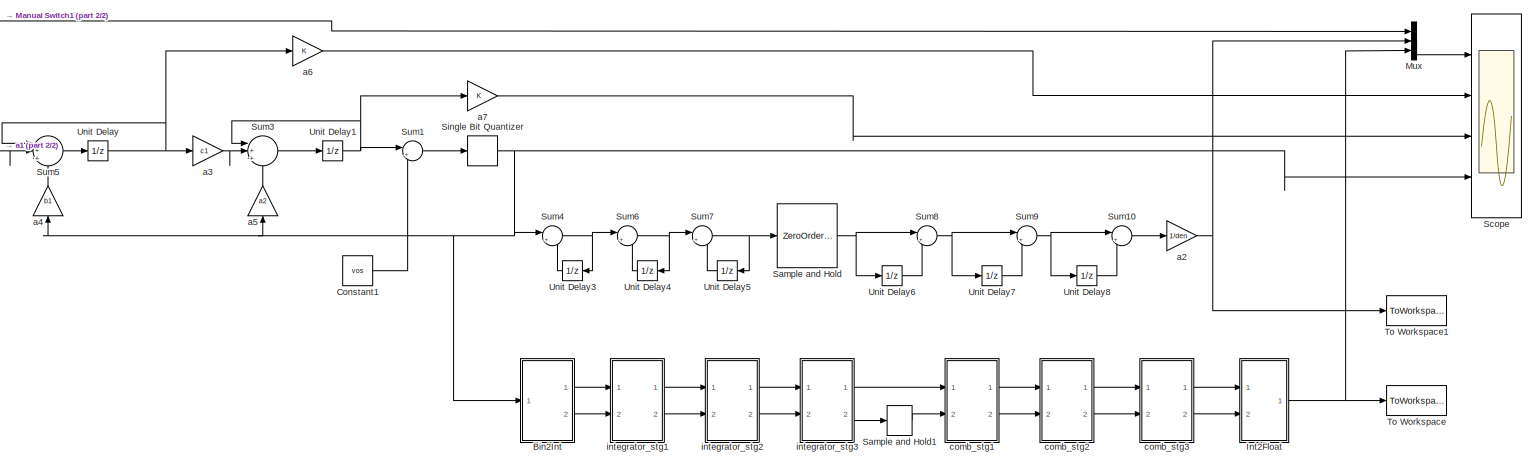
[diagram: root canvas - part 1/2, most of the canvas]
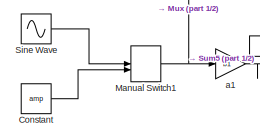
[diagram: root canvas - part 2/2, middle left region]
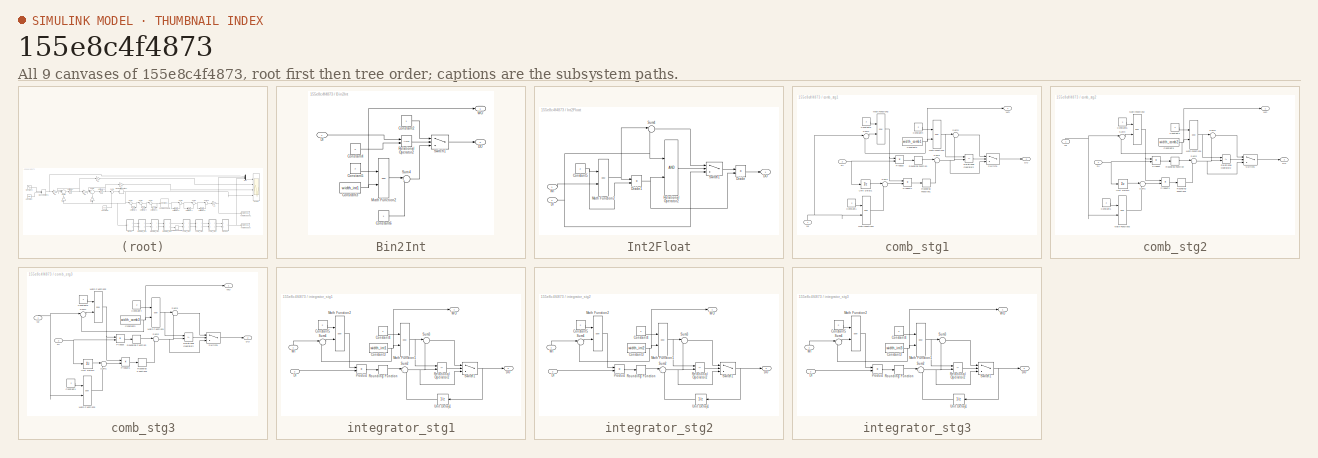
[diagram: thumbnail index - all 9 canvases of the model, root first then tree order]
MODEL slx_155e8c4f4873
KIND model
BLOCK [SubSystem] Bin2Int
  FunctionWithSeparateData = off
  MaskHideContents = off
  MinAlgLoopOccurrences = off
  Opaque = off
  Ports = [1, 2]
  PropExecContextOutsideSubsystem = off
  RTWSystemCode = Auto
  RequestExecContextInheritance = off
BLOCK [Constant] Bin2Int/Constant2
BLOCK [Constant] Bin2Int/Constant3
  Value = width_int1
BLOCK [Constant] Bin2Int/Constant4
  Value = 0
BLOCK [Constant] Bin2Int/Constant5
  Value = 2
BLOCK [Constant] Bin2Int/Constant6
BLOCK [Inport] Bin2Int/DI
  IconDisplay = Port number
BLOCK [Outport] Bin2Int/DO
  IconDisplay = Port number
  Port = 2
BLOCK [Math] Bin2Int/Math Function2
  Operator = pow
  Ports = [2, 1]
  SampleTime = 1/fs
BLOCK [RelationalOperator] Bin2Int/Relational Operator2
  InputSameDT = off
  OutDataTypeStr = boolean
  Ports = [2, 1]
  SampleTime = 1/fs
BLOCK [Sum] Bin2Int/Sum4
  IconShape = round
  InputSameDT = off
  Inputs = |+-
  OutDataTypeStr = Inherit: Inherit via internal rule
  Ports = [2, 1]
  SampleTime = 1/fs
  SaturateOnIntegerOverflow = off
BLOCK [Switch] Bin2Int/Switch1
  Criteria = u2 > Threshold
  InputSameDT = off
  SampleTime = 1/fs
  SaturateOnIntegerOverflow = off
BLOCK [Outport] Bin2Int/WO
  IconDisplay = Port number
BLOCK [Constant] Constant
  SampleTime = 1/fs
  Value = amp
BLOCK [Constant] Constant1
  SampleTime = 1/fs
  Value = vos
BLOCK [SubSystem] Int2Float
  FunctionWithSeparateData = off
  MaskHideContents = off
  MinAlgLoopOccurrences = off
  Opaque = off
  Ports = [2, 1]
  PropExecContextOutsideSubsystem = off
  RTWSystemCode = Auto
  RequestExecContextInheritance = off
BLOCK [Constant] Int2Float/Constant5
  Value = 2
BLOCK [Inport] Int2Float/DI
  IconDisplay = Port number
  Port = 2
BLOCK [Outport] Int2Float/DO
  IconDisplay = Port number
BLOCK [Product] Int2Float/Divide
  InputSameDT = off
  Inputs = */
  OutDataTypeStr = Inherit: Inherit via internal rule
  Ports = [2, 1]
  RndMeth = Floor
  SampleTime = 1/fs
  SaturateOnIntegerOverflow = off
BLOCK [Product] Int2Float/Divide1
  InputSameDT = off
  Inputs = */
  OutDataTypeStr = Inherit: Inherit via internal rule
  Ports = [2, 1]
  RndMeth = Floor
  SampleTime = 1/fs
  SaturateOnIntegerOverflow = off
BLOCK [Math] Int2Float/Math Function2
  Operator = pow
  Ports = [2, 1]
  SampleTime = 1/fs
BLOCK [RelationalOperator] Int2Float/Relational Operator2
  InputSameDT = off
  OutDataTypeStr = boolean
  Ports = [2, 1]
  SampleTime = 1/fs
BLOCK [Sum] Int2Float/Sum4
  IconShape = round
  InputSameDT = off
  Inputs = |-+
  OutDataTypeStr = Inherit: Inherit via internal rule
  Ports = [2, 1]
  SampleTime = 1/fs
  SaturateOnIntegerOverflow = off
BLOCK [Switch] Int2Float/Switch1
  Criteria = u2 > Threshold
  InputSameDT = off
  SampleTime = 1/fs
  SaturateOnIntegerOverflow = off
BLOCK [Inport] Int2Float/WI
  IconDisplay = Port number
BLOCK [ManualSwitch] Manual Switch1
  CurrentSetting = 0
BLOCK [Mux] Mux
  DisplayOption = bar
  Inputs = 3
  Ports = [3, 1]
BLOCK [ZeroOrderHold] Sample and Hold
  SampleTime = osr/fs
BLOCK [ZeroOrderHold] Sample and Hold1
  SampleTime = osr/fs
BLOCK [Scope] Scope
  DataFormat = StructureWithTime
  Floating = off
  MaxDataPoints = 20000
  NumInputPorts = 4
  Ports = [4]
  SampleTime = 0
  ShowLegends = off
  TimeRange = 0.09
  YMax = 0.01001~0.6~0.2~1.5
  YMin = 0.00999~-0.2~-0.2~-1.5
BLOCK [Sin] Sine Wave
  Amplitude = amp
  Frequency = 2*pi*fin
  Ports = [0, 1]
  SampleTime = 1/fs
BLOCK [Signum] Single Bit Quantizer
  SampleTime = 1/fs
BLOCK [Sum] Sum1
  AccumDataTypeStr = double
  IconShape = round
  InputSameDT = off
  Inputs = |++
  OutDataTypeStr = Inherit: Inherit via internal rule
  Ports = [2, 1]
  SampleTime = 1/fs
  SaturateOnIntegerOverflow = off
BLOCK [Sum] Sum10
  AccumDataTypeStr = double
  IconShape = round
  InputSameDT = off
  Inputs = |+-
  OutDataTypeStr = Inherit: Inherit via internal rule
  Ports = [2, 1]
  SampleTime = osr/fs
  SaturateOnIntegerOverflow = off
BLOCK [Sum] Sum3
  AccumDataTypeStr = double
  IconShape = round
  InputSameDT = off
  Inputs = |++-
  OutDataTypeStr = Inherit: Inherit via internal rule
  Ports = [3, 1]
  SampleTime = 1/fs
  SaturateOnIntegerOverflow = off
BLOCK [Sum] Sum4
  AccumDataTypeStr = double
  IconShape = round
  InputSameDT = off
  Inputs = |++
  OutDataTypeStr = Inherit: Inherit via internal rule
  Ports = [2, 1]
  SampleTime = 1/fs
  SaturateOnIntegerOverflow = off
BLOCK [Sum] Sum5
  AccumDataTypeStr = double
  IconShape = round
  InputSameDT = off
  Inputs = |++-
  OutDataTypeStr = Inherit: Inherit via internal rule
  Ports = [3, 1]
  SampleTime = 1/fs
  SaturateOnIntegerOverflow = off
BLOCK [Sum] Sum6
  AccumDataTypeStr = double
  IconShape = round
  InputSameDT = off
  Inputs = |++
  OutDataTypeStr = Inherit: Inherit via internal rule
  Ports = [2, 1]
  SampleTime = 1/fs
  SaturateOnIntegerOverflow = off
BLOCK [Sum] Sum7
  AccumDataTypeStr = double
  IconShape = round
  InputSameDT = off
  Inputs = |++
  OutDataTypeStr = Inherit: Inherit via internal rule
  Ports = [2, 1]
  SampleTime = 1/fs
  SaturateOnIntegerOverflow = off
BLOCK [Sum] Sum8
  AccumDataTypeStr = double
  IconShape = round
  InputSameDT = off
  Inputs = |+-
  OutDataTypeStr = Inherit: Inherit via internal rule
  Ports = [2, 1]
  SampleTime = osr/fs
  SaturateOnIntegerOverflow = off
BLOCK [Sum] Sum9
  AccumDataTypeStr = double
  IconShape = round
  InputSameDT = off
  Inputs = |+-
  OutDataTypeStr = Inherit: Inherit via internal rule
  Ports = [2, 1]
  SampleTime = osr/fs
  SaturateOnIntegerOverflow = off
BLOCK [ToWorkspace] To Workspace
  MaxDataPoints = inf
  Ports = [1]
  SampleTime = osr/fs
  SaveFormat = Timeseries
  VariableName = dout_real
BLOCK [ToWorkspace] To Workspace1
  MaxDataPoints = inf
  Ports = [1]
  SampleTime = osr/fs
  SaveFormat = Timeseries
  VariableName = dout_ideal
BLOCK [UnitDelay] Unit Delay
  SampleTime = 1/fs
BLOCK [UnitDelay] Unit Delay1
  SampleTime = 1/fs
BLOCK [UnitDelay] Unit Delay3
  SampleTime = 1/fs
BLOCK [UnitDelay] Unit Delay4
  SampleTime = 1/fs
BLOCK [UnitDelay] Unit Delay5
  SampleTime = 1/fs
BLOCK [UnitDelay] Unit Delay6
  SampleTime = osr/fs
BLOCK [UnitDelay] Unit Delay7
  SampleTime = osr/fs
BLOCK [UnitDelay] Unit Delay8
  SampleTime = osr/fs
BLOCK [Gain] a1
  Gain = b1
  OutDataTypeStr = Inherit: Inherit via internal rule
  ParamDataTypeStr = Inherit: Inherit via internal rule
  SampleTime = 1/fs
  SaturateOnIntegerOverflow = off
BLOCK [Gain] a2
  Gain = 1/den
  OutDataTypeStr = Inherit: Inherit via internal rule
  ParamDataTypeStr = Inherit: Inherit via internal rule
  SampleTime = osr/fs
  SaturateOnIntegerOverflow = off
BLOCK [Gain] a3
  Gain = c1
  OutDataTypeStr = Inherit: Inherit via internal rule
  ParamDataTypeStr = Inherit: Inherit via internal rule
  SampleTime = 1/fs
  SaturateOnIntegerOverflow = off
BLOCK [Gain] a4
  Gain = b1
  OutDataTypeStr = Inherit: Inherit via internal rule
  ParamDataTypeStr = Inherit: Inherit via internal rule
  SampleTime = 1/fs
  SaturateOnIntegerOverflow = off
BLOCK [Gain] a5
  Gain = a2
  OutDataTypeStr = Inherit: Inherit via internal rule
  ParamDataTypeStr = Inherit: Inherit via internal rule
  SampleTime = 1/fs
  SaturateOnIntegerOverflow = off
BLOCK [Gain] a6
  OutDataTypeStr = Inherit: Inherit via internal rule
  ParamDataTypeStr = Inherit: Inherit via internal rule
  SampleTime = 1/fs
  SaturateOnIntegerOverflow = off
BLOCK [Gain] a7
  OutDataTypeStr = Inherit: Inherit via internal rule
  ParamDataTypeStr = Inherit: Inherit via internal rule
  SampleTime = 1/fs
  SaturateOnIntegerOverflow = off
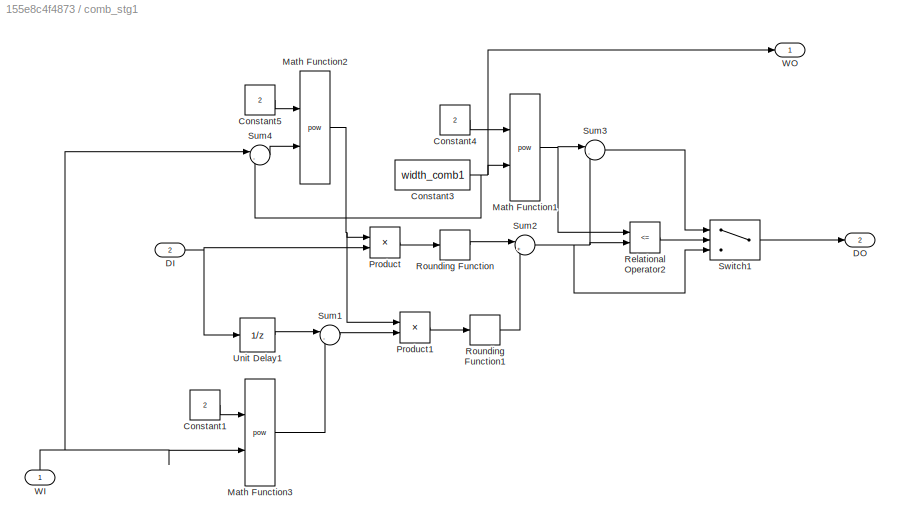
BLOCK [SubSystem] comb_stg1
  FunctionWithSeparateData = off
  MaskHideContents = off
  MinAlgLoopOccurrences = off
  Opaque = off
  Ports = [2, 2]
  PropExecContextOutsideSubsystem = off
  RTWSystemCode = Auto
  RequestExecContextInheritance = off
BLOCK [Constant] comb_stg1/Constant1
  Value = 2
BLOCK [Constant] comb_stg1/Constant3
  Value = width_comb1
BLOCK [Constant] comb_stg1/Constant4
  Value = 2
BLOCK [Constant] comb_stg1/Constant5
  Value = 2
BLOCK [Inport] comb_stg1/DI
  IconDisplay = Port number
  Port = 2
BLOCK [Outport] comb_stg1/DO
  IconDisplay = Port number
  Port = 2
BLOCK [Math] comb_stg1/Math Function1
  Operator = pow
  Ports = [2, 1]
  SampleTime = 1/fs
BLOCK [Math] comb_stg1/Math Function2
  Operator = pow
  Ports = [2, 1]
  SampleTime = 1/fs
BLOCK [Math] comb_stg1/Math Function3
  Operator = pow
  Ports = [2, 1]
  SampleTime = 1/fs
BLOCK [Product] comb_stg1/Product
  InputSameDT = off
  OutDataTypeStr = Inherit: Inherit via internal rule
  Ports = [2, 1]
  RndMeth = Floor
  SampleTime = 1/fs
  SaturateOnIntegerOverflow = off
BLOCK [Product] comb_stg1/Product1
  InputSameDT = off
  OutDataTypeStr = Inherit: Inherit via internal rule
  Ports = [2, 1]
  RndMeth = Floor
  SampleTime = 1/fs
  SaturateOnIntegerOverflow = off
BLOCK [RelationalOperator] comb_stg1/Relational Operator2
  InputSameDT = off
  Operator = <=
  OutDataTypeStr = boolean
  Ports = [2, 1]
  SampleTime = 1/fs
BLOCK [Rounding] comb_stg1/Rounding Function
  SampleTime = 1/fs
BLOCK [Rounding] comb_stg1/Rounding Function1
  SampleTime = 1/fs
BLOCK [Sum] comb_stg1/Sum1
  IconShape = round
  InputSameDT = off
  Inputs = |-+
  OutDataTypeStr = Inherit: Inherit via internal rule
  Ports = [2, 1]
  SampleTime = 1/fs
  SaturateOnIntegerOverflow = off
BLOCK [Sum] comb_stg1/Sum2
  IconShape = round
  InputSameDT = off
  Inputs = |++
  OutDataTypeStr = Inherit: Inherit via internal rule
  Ports = [2, 1]
  SampleTime = 1/fs
  SaturateOnIntegerOverflow = off
BLOCK [Sum] comb_stg1/Sum3
  IconShape = round
  InputSameDT = off
  Inputs = |-+
  OutDataTypeStr = Inherit: Inherit via internal rule
  Ports = [2, 1]
  SampleTime = 1/fs
  SaturateOnIntegerOverflow = off
BLOCK [Sum] comb_stg1/Sum4
  IconShape = round
  InputSameDT = off
  Inputs = |-+
  OutDataTypeStr = Inherit: Inherit via internal rule
  Ports = [2, 1]
  SampleTime = 1/fs
  SaturateOnIntegerOverflow = off
BLOCK [Switch] comb_stg1/Switch1
  Criteria = u2 > Threshold
  InputSameDT = off
  SampleTime = 1/fs
  SaturateOnIntegerOverflow = off
BLOCK [UnitDelay] comb_stg1/Unit Delay1
  InputProcessing = Elements as channels (sample based)
  SampleTime = osr/fs
BLOCK [Inport] comb_stg1/WI
  IconDisplay = Port number
BLOCK [Outport] comb_stg1/WO
  IconDisplay = Port number
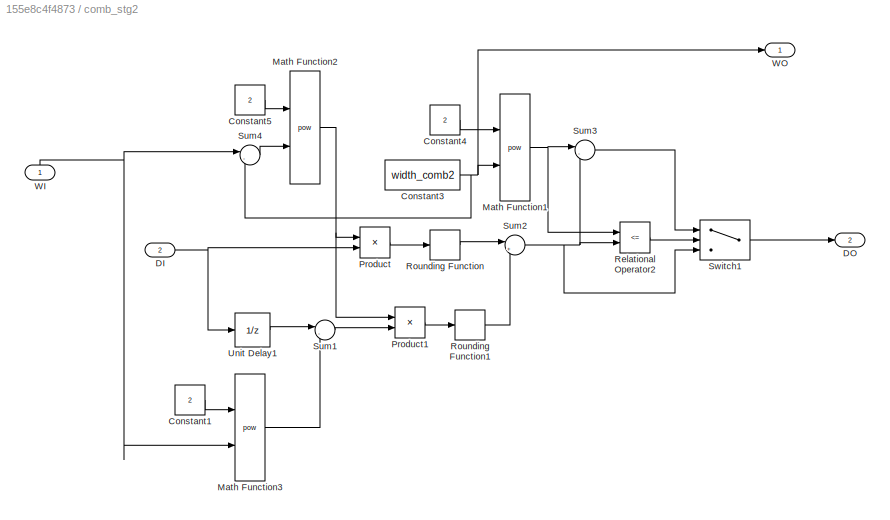
BLOCK [SubSystem] comb_stg2
  FunctionWithSeparateData = off
  MaskHideContents = off
  MinAlgLoopOccurrences = off
  Opaque = off
  Ports = [2, 2]
  PropExecContextOutsideSubsystem = off
  RTWSystemCode = Auto
  RequestExecContextInheritance = off
BLOCK [Constant] comb_stg2/Constant1
  Value = 2
BLOCK [Constant] comb_stg2/Constant3
  Value = width_comb2
BLOCK [Constant] comb_stg2/Constant4
  Value = 2
BLOCK [Constant] comb_stg2/Constant5
  Value = 2
BLOCK [Inport] comb_stg2/DI
  IconDisplay = Port number
  Port = 2
BLOCK [Outport] comb_stg2/DO
  IconDisplay = Port number
  Port = 2
BLOCK [Math] comb_stg2/Math Function1
  Operator = pow
  Ports = [2, 1]
  SampleTime = 1/fs
BLOCK [Math] comb_stg2/Math Function2
  Operator = pow
  Ports = [2, 1]
  SampleTime = 1/fs
BLOCK [Math] comb_stg2/Math Function3
  Operator = pow
  Ports = [2, 1]
  SampleTime = 1/fs
BLOCK [Product] comb_stg2/Product
  InputSameDT = off
  OutDataTypeStr = Inherit: Inherit via internal rule
  Ports = [2, 1]
  RndMeth = Floor
  SampleTime = 1/fs
  SaturateOnIntegerOverflow = off
BLOCK [Product] comb_stg2/Product1
  InputSameDT = off
  OutDataTypeStr = Inherit: Inherit via internal rule
  Ports = [2, 1]
  RndMeth = Floor
  SampleTime = 1/fs
  SaturateOnIntegerOverflow = off
BLOCK [RelationalOperator] comb_stg2/Relational Operator2
  InputSameDT = off
  Operator = <=
  OutDataTypeStr = boolean
  Ports = [2, 1]
  SampleTime = 1/fs
BLOCK [Rounding] comb_stg2/Rounding Function
  SampleTime = 1/fs
BLOCK [Rounding] comb_stg2/Rounding Function1
  SampleTime = 1/fs
BLOCK [Sum] comb_stg2/Sum1
  IconShape = round
  InputSameDT = off
  Inputs = |-+
  OutDataTypeStr = Inherit: Inherit via internal rule
  Ports = [2, 1]
  SampleTime = 1/fs
  SaturateOnIntegerOverflow = off
BLOCK [Sum] comb_stg2/Sum2
  IconShape = round
  InputSameDT = off
  Inputs = |++
  OutDataTypeStr = Inherit: Inherit via internal rule
  Ports = [2, 1]
  SampleTime = 1/fs
  SaturateOnIntegerOverflow = off
BLOCK [Sum] comb_stg2/Sum3
  IconShape = round
  InputSameDT = off
  Inputs = |-+
  OutDataTypeStr = Inherit: Inherit via internal rule
  Ports = [2, 1]
  SampleTime = 1/fs
  SaturateOnIntegerOverflow = off
BLOCK [Sum] comb_stg2/Sum4
  IconShape = round
  InputSameDT = off
  Inputs = |-+
  OutDataTypeStr = Inherit: Inherit via internal rule
  Ports = [2, 1]
  SampleTime = 1/fs
  SaturateOnIntegerOverflow = off
BLOCK [Switch] comb_stg2/Switch1
  Criteria = u2 > Threshold
  InputSameDT = off
  SampleTime = 1/fs
  SaturateOnIntegerOverflow = off
BLOCK [UnitDelay] comb_stg2/Unit Delay1
  InputProcessing = Elements as channels (sample based)
  SampleTime = osr/fs
BLOCK [Inport] comb_stg2/WI
  IconDisplay = Port number
BLOCK [Outport] comb_stg2/WO
  IconDisplay = Port number
BLOCK [SubSystem] comb_stg3
  FunctionWithSeparateData = off
  MaskHideContents = off
  MinAlgLoopOccurrences = off
  Opaque = off
  Ports = [2, 2]
  PropExecContextOutsideSubsystem = off
  RTWSystemCode = Auto
  RequestExecContextInheritance = off
BLOCK [Constant] comb_stg3/Constant1
  Value = 2
BLOCK [Constant] comb_stg3/Constant3
  Value = width_comb3
BLOCK [Constant] comb_stg3/Constant4
  Value = 2
BLOCK [Constant] comb_stg3/Constant5
  Value = 2
BLOCK [Inport] comb_stg3/DI
  IconDisplay = Port number
  Port = 2
BLOCK [Outport] comb_stg3/DO
  IconDisplay = Port number
  Port = 2
BLOCK [Math] comb_stg3/Math Function1
  Operator = pow
  Ports = [2, 1]
  SampleTime = 1/fs
BLOCK [Math] comb_stg3/Math Function2
  Operator = pow
  Ports = [2, 1]
  SampleTime = 1/fs
BLOCK [Math] comb_stg3/Math Function3
  Operator = pow
  Ports = [2, 1]
  SampleTime = 1/fs
BLOCK [Product] comb_stg3/Product
  InputSameDT = off
  OutDataTypeStr = Inherit: Inherit via internal rule
  Ports = [2, 1]
  RndMeth = Floor
  SampleTime = 1/fs
  SaturateOnIntegerOverflow = off
BLOCK [Product] comb_stg3/Product1
  InputSameDT = off
  OutDataTypeStr = Inherit: Inherit via internal rule
  Ports = [2, 1]
  RndMeth = Floor
  SampleTime = 1/fs
  SaturateOnIntegerOverflow = off
BLOCK [RelationalOperator] comb_stg3/Relational Operator2
  InputSameDT = off
  Operator = <=
  OutDataTypeStr = boolean
  Ports = [2, 1]
  SampleTime = 1/fs
BLOCK [Rounding] comb_stg3/Rounding Function
  SampleTime = 1/fs
BLOCK [Rounding] comb_stg3/Rounding Function1
  SampleTime = 1/fs
BLOCK [Sum] comb_stg3/Sum1
  IconShape = round
  InputSameDT = off
  Inputs = |-+
  OutDataTypeStr = Inherit: Inherit via internal rule
  Ports = [2, 1]
  SampleTime = 1/fs
  SaturateOnIntegerOverflow = off
BLOCK [Sum] comb_stg3/Sum2
  IconShape = round
  InputSameDT = off
  Inputs = |++
  OutDataTypeStr = Inherit: Inherit via internal rule
  Ports = [2, 1]
  SampleTime = 1/fs
  SaturateOnIntegerOverflow = off
BLOCK [Sum] comb_stg3/Sum3
  IconShape = round
  InputSameDT = off
  Inputs = |-+
  OutDataTypeStr = Inherit: Inherit via internal rule
  Ports = [2, 1]
  SampleTime = 1/fs
  SaturateOnIntegerOverflow = off
BLOCK [Sum] comb_stg3/Sum4
  IconShape = round
  InputSameDT = off
  Inputs = |-+
  OutDataTypeStr = Inherit: Inherit via internal rule
  Ports = [2, 1]
  SampleTime = 1/fs
  SaturateOnIntegerOverflow = off
BLOCK [Switch] comb_stg3/Switch1
  Criteria = u2 > Threshold
  InputSameDT = off
  SampleTime = 1/fs
  SaturateOnIntegerOverflow = off
BLOCK [UnitDelay] comb_stg3/Unit Delay1
  InputProcessing = Elements as channels (sample based)
  SampleTime = osr/fs
BLOCK [Inport] comb_stg3/WI
  IconDisplay = Port number
BLOCK [Outport] comb_stg3/WO
  IconDisplay = Port number
BLOCK [SubSystem] integrator_stg1
  FunctionWithSeparateData = off
  MaskHideContents = off
  MinAlgLoopOccurrences = off
  Opaque = off
  Ports = [2, 2]
  PropExecContextOutsideSubsystem = off
  RTWSystemCode = Auto
  RequestExecContextInheritance = off
BLOCK [Constant] integrator_stg1/Constant3
  Value = width_int1
BLOCK [Constant] integrator_stg1/Constant4
  Value = 2
BLOCK [Constant] integrator_stg1/Constant5
  Value = 2
BLOCK [Inport] integrator_stg1/DI
  IconDisplay = Port number
  Port = 2
BLOCK [Outport] integrator_stg1/DO
  IconDisplay = Port number
  Port = 2
BLOCK [Math] integrator_stg1/Math Function1
  Operator = pow
  Ports = [2, 1]
  SampleTime = 1/fs
BLOCK [Math] integrator_stg1/Math Function2
  Operator = pow
  Ports = [2, 1]
  SampleTime = 1/fs
BLOCK [Product] integrator_stg1/Product
  InputSameDT = off
  OutDataTypeStr = Inherit: Inherit via internal rule
  Ports = [2, 1]
  RndMeth = Floor
  SampleTime = 1/fs
  SaturateOnIntegerOverflow = off
BLOCK [RelationalOperator] integrator_stg1/Relational Operator2
  InputSameDT = off
  Operator = <=
  OutDataTypeStr = boolean
  Ports = [2, 1]
  SampleTime = 1/fs
BLOCK [Rounding] integrator_stg1/Rounding Function
  SampleTime = 1/fs
BLOCK [Sum] integrator_stg1/Sum2
  IconShape = round
  InputSameDT = off
  Inputs = |++
  OutDataTypeStr = Inherit: Inherit via internal rule
  Ports = [2, 1]
  SampleTime = 1/fs
  SaturateOnIntegerOverflow = off
BLOCK [Sum] integrator_stg1/Sum3
  IconShape = round
  InputSameDT = off
  Inputs = |-+
  OutDataTypeStr = Inherit: Inherit via internal rule
  Ports = [2, 1]
  SampleTime = 1/fs
  SaturateOnIntegerOverflow = off
BLOCK [Sum] integrator_stg1/Sum4
  IconShape = round
  InputSameDT = off
  Inputs = |-+
  OutDataTypeStr = Inherit: Inherit via internal rule
  Ports = [2, 1]
  SampleTime = 1/fs
  SaturateOnIntegerOverflow = off
BLOCK [Switch] integrator_stg1/Switch1
  Criteria = u2 > Threshold
  InputSameDT = off
  SampleTime = 1/fs
  SaturateOnIntegerOverflow = off
BLOCK [UnitDelay] integrator_stg1/Unit Delay1
  InputProcessing = Elements as channels (sample based)
  SampleTime = 1/fs
BLOCK [Inport] integrator_stg1/WI
  IconDisplay = Port number
BLOCK [Outport] integrator_stg1/WO
  IconDisplay = Port number
BLOCK [SubSystem] integrator_stg2
  FunctionWithSeparateData = off
  MaskHideContents = off
  MinAlgLoopOccurrences = off
  Opaque = off
  Ports = [2, 2]
  PropExecContextOutsideSubsystem = off
  RTWSystemCode = Auto
  RequestExecContextInheritance = off
BLOCK [Constant] integrator_stg2/Constant3
  Value = width_int2
BLOCK [Constant] integrator_stg2/Constant4
  Value = 2
BLOCK [Constant] integrator_stg2/Constant5
  Value = 2
BLOCK [Inport] integrator_stg2/DI
  IconDisplay = Port number
  Port = 2
BLOCK [Outport] integrator_stg2/DO
  IconDisplay = Port number
  Port = 2
BLOCK [Math] integrator_stg2/Math Function1
  Operator = pow
  Ports = [2, 1]
  SampleTime = 1/fs
BLOCK [Math] integrator_stg2/Math Function2
  Operator = pow
  Ports = [2, 1]
  SampleTime = 1/fs
BLOCK [Product] integrator_stg2/Product
  InputSameDT = off
  OutDataTypeStr = Inherit: Inherit via internal rule
  Ports = [2, 1]
  RndMeth = Floor
  SampleTime = 1/fs
  SaturateOnIntegerOverflow = off
BLOCK [RelationalOperator] integrator_stg2/Relational Operator2
  InputSameDT = off
  Operator = <=
  OutDataTypeStr = boolean
  Ports = [2, 1]
  SampleTime = 1/fs
BLOCK [Rounding] integrator_stg2/Rounding Function
  SampleTime = 1/fs
BLOCK [Sum] integrator_stg2/Sum2
  IconShape = round
  InputSameDT = off
  Inputs = |++
  OutDataTypeStr = Inherit: Inherit via internal rule
  Ports = [2, 1]
  SampleTime = 1/fs
  SaturateOnIntegerOverflow = off
BLOCK [Sum] integrator_stg2/Sum3
  IconShape = round
  InputSameDT = off
  Inputs = |-+
  OutDataTypeStr = Inherit: Inherit via internal rule
  Ports = [2, 1]
  SampleTime = 1/fs
  SaturateOnIntegerOverflow = off
BLOCK [Sum] integrator_stg2/Sum4
  IconShape = round
  InputSameDT = off
  Inputs = |-+
  OutDataTypeStr = Inherit: Inherit via internal rule
  Ports = [2, 1]
  SampleTime = 1/fs
  SaturateOnIntegerOverflow = off
BLOCK [Switch] integrator_stg2/Switch1
  Criteria = u2 > Threshold
  InputSameDT = off
  SampleTime = 1/fs
  SaturateOnIntegerOverflow = off
BLOCK [UnitDelay] integrator_stg2/Unit Delay1
  InputProcessing = Elements as channels (sample based)
  SampleTime = 1/fs
BLOCK [Inport] integrator_stg2/WI
  IconDisplay = Port number
BLOCK [Outport] integrator_stg2/WO
  IconDisplay = Port number
BLOCK [SubSystem] integrator_stg3
  FunctionWithSeparateData = off
  MaskHideContents = off
  MinAlgLoopOccurrences = off
  Opaque = off
  Ports = [2, 2]
  PropExecContextOutsideSubsystem = off
  RTWSystemCode = Auto
  RequestExecContextInheritance = off
BLOCK [Constant] integrator_stg3/Constant3
  Value = width_int3
BLOCK [Constant] integrator_stg3/Constant4
  Value = 2
BLOCK [Constant] integrator_stg3/Constant5
  Value = 2
BLOCK [Inport] integrator_stg3/DI
  IconDisplay = Port number
  Port = 2
BLOCK [Outport] integrator_stg3/DO
  IconDisplay = Port number
  Port = 2
BLOCK [Math] integrator_stg3/Math Function1
  Operator = pow
  Ports = [2, 1]
  SampleTime = 1/fs
BLOCK [Math] integrator_stg3/Math Function2
  Operator = pow
  Ports = [2, 1]
  SampleTime = 1/fs
BLOCK [Product] integrator_stg3/Product
  InputSameDT = off
  OutDataTypeStr = Inherit: Inherit via internal rule
  Ports = [2, 1]
  RndMeth = Floor
  SampleTime = 1/fs
  SaturateOnIntegerOverflow = off
BLOCK [RelationalOperator] integrator_stg3/Relational Operator2
  InputSameDT = off
  Operator = <=
  OutDataTypeStr = boolean
  Ports = [2, 1]
  SampleTime = 1/fs
BLOCK [Rounding] integrator_stg3/Rounding Function
  SampleTime = 1/fs
BLOCK [Sum] integrator_stg3/Sum2
  IconShape = round
  InputSameDT = off
  Inputs = |++
  OutDataTypeStr = Inherit: Inherit via internal rule
  Ports = [2, 1]
  SampleTime = 1/fs
  SaturateOnIntegerOverflow = off
BLOCK [Sum] integrator_stg3/Sum3
  IconShape = round
  InputSameDT = off
  Inputs = |-+
  OutDataTypeStr = Inherit: Inherit via internal rule
  Ports = [2, 1]
  SampleTime = 1/fs
  SaturateOnIntegerOverflow = off
BLOCK [Sum] integrator_stg3/Sum4
  IconShape = round
  InputSameDT = off
  Inputs = |-+
  OutDataTypeStr = Inherit: Inherit via internal rule
  Ports = [2, 1]
  SampleTime = 1/fs
  SaturateOnIntegerOverflow = off
BLOCK [Switch] integrator_stg3/Switch1
  Criteria = u2 > Threshold
  InputSameDT = off
  SampleTime = 1/fs
  SaturateOnIntegerOverflow = off
BLOCK [UnitDelay] integrator_stg3/Unit Delay1
  InputProcessing = Elements as channels (sample based)
  SampleTime = 1/fs
BLOCK [Inport] integrator_stg3/WI
  IconDisplay = Port number
BLOCK [Outport] integrator_stg3/WO
  IconDisplay = Port number
LINE Bin2Int/Constant2:1 -> Bin2Int/Switch1:1
NET Bin2Int/Constant3:1 -> Bin2Int/Math Function2:2, Bin2Int/WO:1
LINE Bin2Int/Constant4:1 -> Bin2Int/Relational Operator2:2
LINE Bin2Int/Constant5:1 -> Bin2Int/Math Function2:1
LINE Bin2Int/Constant6:1 -> Bin2Int/Sum4:2
LINE Bin2Int/DI:1 -> Bin2Int/Relational Operator2:1
LINE Bin2Int/Math Function2:1 -> Bin2Int/Sum4:1
LINE Bin2Int/Relational Operator2:1 -> Bin2Int/Switch1:2
LINE Bin2Int/Sum4:1 -> Bin2Int/Switch1:3
LINE Bin2Int/Switch1:1 -> Bin2Int/DO:1
LINE Bin2Int:1 -> integrator_stg1:1
LINE Bin2Int:2 -> integrator_stg1:2
LINE Constant1:1 -> Sum1:2
LINE Constant:1 -> Manual Switch1:2
NET Int2Float/Constant5:1 -> Int2Float/Divide1:2, Int2Float/Math Function2:1
NET Int2Float/DI:1 -> Int2Float/Relational Operator2:1, Int2Float/Sum4:2, Int2Float/Switch1:3
NET Int2Float/Divide1:1 -> Int2Float/Divide:2, Int2Float/Relational Operator2:2
LINE Int2Float/Divide:1 -> Int2Float/DO:1
NET Int2Float/Math Function2:1 -> Int2Float/Divide1:1, Int2Float/Sum4:1
LINE Int2Float/Relational Operator2:1 -> Int2Float/Switch1:2
LINE Int2Float/Sum4:1 -> Int2Float/Switch1:1
LINE Int2Float/Switch1:1 -> Int2Float/Divide:1
LINE Int2Float/WI:1 -> Int2Float/Math Function2:2
NET Int2Float:1 -> Mux:3, To Workspace:1
NET Manual Switch1:1 -> Mux:1, a1:1
LINE Mux:1 -> Scope:1
LINE Sample and Hold1:1 -> comb_stg1:2
NET Sample and Hold:1 -> Sum8:1, Unit Delay6:1
LINE Sine Wave:1 -> Manual Switch1:1
NET Single Bit Quantizer:1 -> Bin2Int:1, Scope:4, Sum4:1, a4:1, a5:1
LINE Sum10:1 -> a2:1
LINE Sum1:1 -> Single Bit Quantizer:1
LINE Sum3:1 -> Unit Delay1:1
NET Sum4:1 -> Sum6:1, Unit Delay3:1
LINE Sum5:1 -> Unit Delay:1
NET Sum6:1 -> Sum7:1, Unit Delay4:1
NET Sum7:1 -> Sample and Hold:1, Unit Delay5:1
NET Sum8:1 -> Sum9:1, Unit Delay7:1
NET Sum9:1 -> Sum10:1, Unit Delay8:1
NET Unit Delay1:1 -> Sum1:1, Sum3:1, a7:1
LINE Unit Delay3:1 -> Sum4:2
LINE Unit Delay4:1 -> Sum6:2
LINE Unit Delay5:1 -> Sum7:2
LINE Unit Delay6:1 -> Sum8:2
LINE Unit Delay7:1 -> Sum9:2
LINE Unit Delay8:1 -> Sum10:2
NET Unit Delay:1 -> Sum5:1, a3:1, a6:1
LINE a1:1 -> Sum5:2
NET a2:1 -> Mux:2, To Workspace1:1
LINE a3:1 -> Sum3:2
LINE a4:1 -> Sum5:3
LINE a5:1 -> Sum3:3
LINE a6:1 -> Scope:2
LINE a7:1 -> Scope:3
LINE comb_stg1/Constant1:1 -> comb_stg1/Math Function3:1
NET comb_stg1/Constant3:1 -> comb_stg1/Math Function1:2, comb_stg1/Sum4:2, comb_stg1/WO:1
LINE comb_stg1/Constant4:1 -> comb_stg1/Math Function1:1
LINE comb_stg1/Constant5:1 -> comb_stg1/Math Function2:1
NET comb_stg1/DI:1 -> comb_stg1/Product:2, comb_stg1/Unit Delay1:1
NET comb_stg1/Math Function1:1 -> comb_stg1/Relational Operator2:1, comb_stg1/Sum3:1
NET comb_stg1/Math Function2:1 -> comb_stg1/Product1:1, comb_stg1/Product:1
LINE comb_stg1/Math Function3:1 -> comb_stg1/Sum1:2
LINE comb_stg1/Product1:1 -> comb_stg1/Rounding Function1:1
LINE comb_stg1/Product:1 -> comb_stg1/Rounding Function:1
LINE comb_stg1/Relational Operator2:1 -> comb_stg1/Switch1:2
LINE comb_stg1/Rounding Function1:1 -> comb_stg1/Sum2:2
LINE comb_stg1/Rounding Function:1 -> comb_stg1/Sum2:1
LINE comb_stg1/Sum1:1 -> comb_stg1/Product1:2
NET comb_stg1/Sum2:1 -> comb_stg1/Relational Operator2:2, comb_stg1/Sum3:2, comb_stg1/Switch1:3
LINE comb_stg1/Sum3:1 -> comb_stg1/Switch1:1
LINE comb_stg1/Sum4:1 -> comb_stg1/Math Function2:2
LINE comb_stg1/Switch1:1 -> comb_stg1/DO:1
LINE comb_stg1/Unit Delay1:1 -> comb_stg1/Sum1:1
NET comb_stg1/WI:1 -> comb_stg1/Math Function3:2, comb_stg1/Sum4:1
LINE comb_stg1:1 -> comb_stg2:1
LINE comb_stg1:2 -> comb_stg2:2
LINE comb_stg2/Constant1:1 -> comb_stg2/Math Function3:1
NET comb_stg2/Constant3:1 -> comb_stg2/Math Function1:2, comb_stg2/Sum4:2, comb_stg2/WO:1
LINE comb_stg2/Constant4:1 -> comb_stg2/Math Function1:1
LINE comb_stg2/Constant5:1 -> comb_stg2/Math Function2:1
NET comb_stg2/DI:1 -> comb_stg2/Product:2, comb_stg2/Unit Delay1:1
NET comb_stg2/Math Function1:1 -> comb_stg2/Relational Operator2:1, comb_stg2/Sum3:1
NET comb_stg2/Math Function2:1 -> comb_stg2/Product1:1, comb_stg2/Product:1
LINE comb_stg2/Math Function3:1 -> comb_stg2/Sum1:2
LINE comb_stg2/Product1:1 -> comb_stg2/Rounding Function1:1
LINE comb_stg2/Product:1 -> comb_stg2/Rounding Function:1
LINE comb_stg2/Relational Operator2:1 -> comb_stg2/Switch1:2
LINE comb_stg2/Rounding Function1:1 -> comb_stg2/Sum2:2
LINE comb_stg2/Rounding Function:1 -> comb_stg2/Sum2:1
LINE comb_stg2/Sum1:1 -> comb_stg2/Product1:2
NET comb_stg2/Sum2:1 -> comb_stg2/Relational Operator2:2, comb_stg2/Sum3:2, comb_stg2/Switch1:3
LINE comb_stg2/Sum3:1 -> comb_stg2/Switch1:1
LINE comb_stg2/Sum4:1 -> comb_stg2/Math Function2:2
LINE comb_stg2/Switch1:1 -> comb_stg2/DO:1
LINE comb_stg2/Unit Delay1:1 -> comb_stg2/Sum1:1
NET comb_stg2/WI:1 -> comb_stg2/Math Function3:2, comb_stg2/Sum4:1
LINE comb_stg2:1 -> comb_stg3:1
LINE comb_stg2:2 -> comb_stg3:2
LINE comb_stg3/Constant1:1 -> comb_stg3/Math Function3:1
NET comb_stg3/Constant3:1 -> comb_stg3/Math Function1:2, comb_stg3/Sum4:2, comb_stg3/WO:1
LINE comb_stg3/Constant4:1 -> comb_stg3/Math Function1:1
LINE comb_stg3/Constant5:1 -> comb_stg3/Math Function2:1
NET comb_stg3/DI:1 -> comb_stg3/Product:2, comb_stg3/Unit Delay1:1
NET comb_stg3/Math Function1:1 -> comb_stg3/Relational Operator2:1, comb_stg3/Sum3:1
NET comb_stg3/Math Function2:1 -> comb_stg3/Product1:1, comb_stg3/Product:1
LINE comb_stg3/Math Function3:1 -> comb_stg3/Sum1:2
LINE comb_stg3/Product1:1 -> comb_stg3/Rounding Function1:1
LINE comb_stg3/Product:1 -> comb_stg3/Rounding Function:1
LINE comb_stg3/Relational Operator2:1 -> comb_stg3/Switch1:2
LINE comb_stg3/Rounding Function1:1 -> comb_stg3/Sum2:2
LINE comb_stg3/Rounding Function:1 -> comb_stg3/Sum2:1
LINE comb_stg3/Sum1:1 -> comb_stg3/Product1:2
NET comb_stg3/Sum2:1 -> comb_stg3/Relational Operator2:2, comb_stg3/Sum3:2, comb_stg3/Switch1:3
LINE comb_stg3/Sum3:1 -> comb_stg3/Switch1:1
LINE comb_stg3/Sum4:1 -> comb_stg3/Math Function2:2
LINE comb_stg3/Switch1:1 -> comb_stg3/DO:1
LINE comb_stg3/Unit Delay1:1 -> comb_stg3/Sum1:1
NET comb_stg3/WI:1 -> comb_stg3/Math Function3:2, comb_stg3/Sum4:1
LINE comb_stg3:1 -> Int2Float:1
LINE comb_stg3:2 -> Int2Float:2
NET integrator_stg1/Constant3:1 -> integrator_stg1/Math Function1:2, integrator_stg1/Sum4:2, integrator_stg1/WO:1
LINE integrator_stg1/Constant4:1 -> integrator_stg1/Math Function1:1
LINE integrator_stg1/Constant5:1 -> integrator_stg1/Math Function2:1
LINE integrator_stg1/DI:1 -> integrator_stg1/Product:2
NET integrator_stg1/Math Function1:1 -> integrator_stg1/Relational Operator2:1, integrator_stg1/Sum3:1
LINE integrator_stg1/Math Function2:1 -> integrator_stg1/Product:1
LINE integrator_stg1/Product:1 -> integrator_stg1/Rounding Function:1
LINE integrator_stg1/Relational Operator2:1 -> integrator_stg1/Switch1:2
LINE integrator_stg1/Rounding Function:1 -> integrator_stg1/Sum2:1
NET integrator_stg1/Sum2:1 -> integrator_stg1/Relational Operator2:2, integrator_stg1/Sum3:2, integrator_stg1/Switch1:3
LINE integrator_stg1/Sum3:1 -> integrator_stg1/Switch1:1
LINE integrator_stg1/Sum4:1 -> integrator_stg1/Math Function2:2
NET integrator_stg1/Switch1:1 -> integrator_stg1/DO:1, integrator_stg1/Unit Delay1:1
LINE integrator_stg1/Unit Delay1:1 -> integrator_stg1/Sum2:2
LINE integrator_stg1/WI:1 -> integrator_stg1/Sum4:1
LINE integrator_stg1:1 -> integrator_stg2:1
LINE integrator_stg1:2 -> integrator_stg2:2
NET integrator_stg2/Constant3:1 -> integrator_stg2/Math Function1:2, integrator_stg2/Sum4:2, integrator_stg2/WO:1
LINE integrator_stg2/Constant4:1 -> integrator_stg2/Math Function1:1
LINE integrator_stg2/Constant5:1 -> integrator_stg2/Math Function2:1
LINE integrator_stg2/DI:1 -> integrator_stg2/Product:2
NET integrator_stg2/Math Function1:1 -> integrator_stg2/Relational Operator2:1, integrator_stg2/Sum3:1
LINE integrator_stg2/Math Function2:1 -> integrator_stg2/Product:1
LINE integrator_stg2/Product:1 -> integrator_stg2/Rounding Function:1
LINE integrator_stg2/Relational Operator2:1 -> integrator_stg2/Switch1:2
LINE integrator_stg2/Rounding Function:1 -> integrator_stg2/Sum2:1
NET integrator_stg2/Sum2:1 -> integrator_stg2/Relational Operator2:2, integrator_stg2/Sum3:2, integrator_stg2/Switch1:3
LINE integrator_stg2/Sum3:1 -> integrator_stg2/Switch1:1
LINE integrator_stg2/Sum4:1 -> integrator_stg2/Math Function2:2
NET integrator_stg2/Switch1:1 -> integrator_stg2/DO:1, integrator_stg2/Unit Delay1:1
LINE integrator_stg2/Unit Delay1:1 -> integrator_stg2/Sum2:2
LINE integrator_stg2/WI:1 -> integrator_stg2/Sum4:1
LINE integrator_stg2:1 -> integrator_stg3:1
LINE integrator_stg2:2 -> integrator_stg3:2
NET integrator_stg3/Constant3:1 -> integrator_stg3/Math Function1:2, integrator_stg3/Sum4:2, integrator_stg3/WO:1
LINE integrator_stg3/Constant4:1 -> integrator_stg3/Math Function1:1
LINE integrator_stg3/Constant5:1 -> integrator_stg3/Math Function2:1
LINE integrator_stg3/DI:1 -> integrator_stg3/Product:2
NET integrator_stg3/Math Function1:1 -> integrator_stg3/Relational Operator2:1, integrator_stg3/Sum3:1
LINE integrator_stg3/Math Function2:1 -> integrator_stg3/Product:1
LINE integrator_stg3/Product:1 -> integrator_stg3/Rounding Function:1
LINE integrator_stg3/Relational Operator2:1 -> integrator_stg3/Switch1:2
LINE integrator_stg3/Rounding Function:1 -> integrator_stg3/Sum2:1
NET integrator_stg3/Sum2:1 -> integrator_stg3/Relational Operator2:2, integrator_stg3/Sum3:2, integrator_stg3/Switch1:3
LINE integrator_stg3/Sum3:1 -> integrator_stg3/Switch1:1
LINE integrator_stg3/Sum4:1 -> integrator_stg3/Math Function2:2
NET integrator_stg3/Switch1:1 -> integrator_stg3/DO:1, integrator_stg3/Unit Delay1:1
LINE integrator_stg3/Unit Delay1:1 -> integrator_stg3/Sum2:2
LINE integrator_stg3/WI:1 -> integrator_stg3/Sum4:1
LINE integrator_stg3:1 -> comb_stg1:1
LINE integrator_stg3:2 -> Sample and Hold1:1
note: NET lines group one-source signal fan-out (src -> all destinations, sorted); 1:1 wires keep LINE
